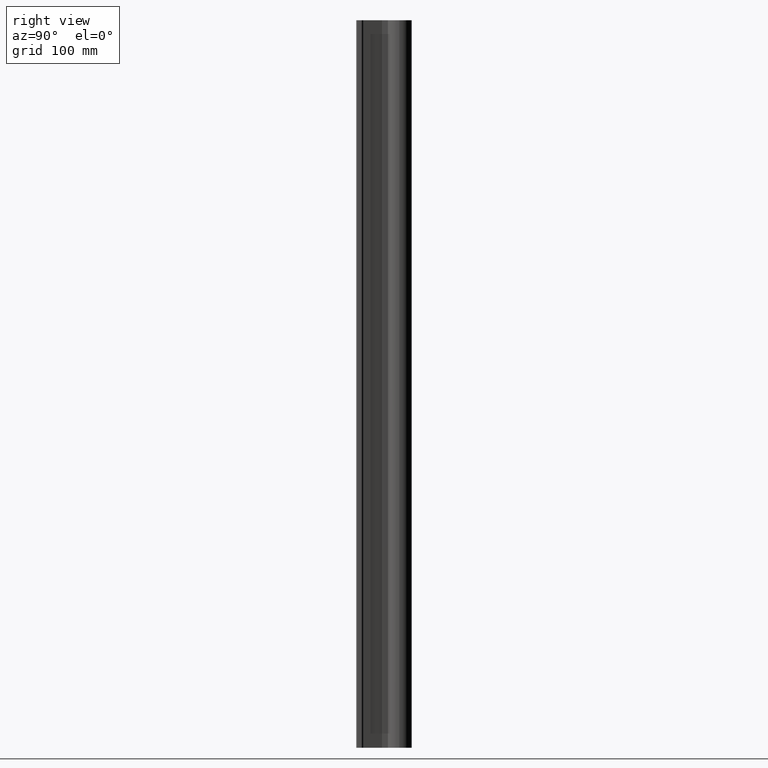
[diagram: clean part render]
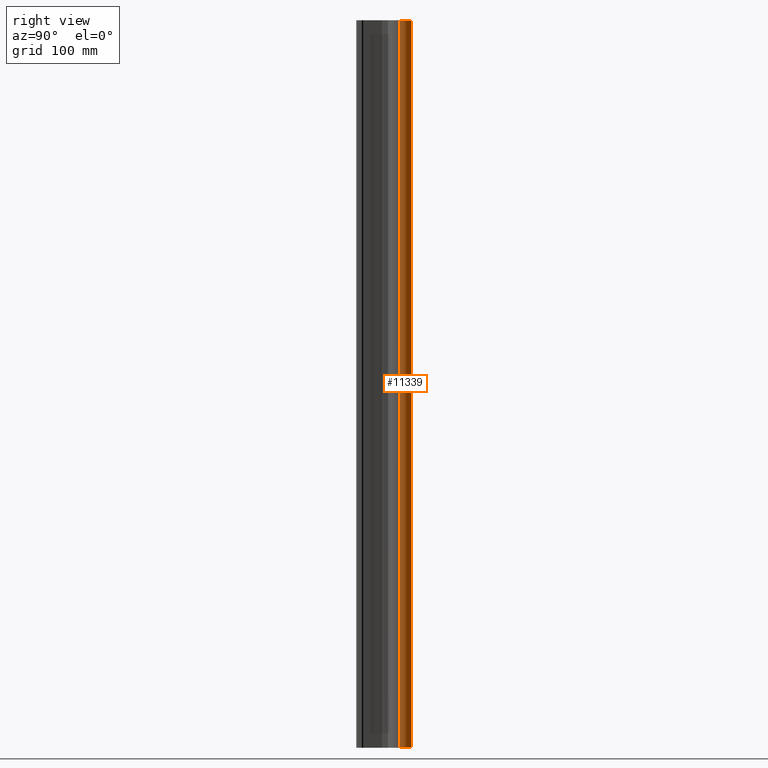
[diagram: same view with one face highlighted and labeled with its STEP entity id]
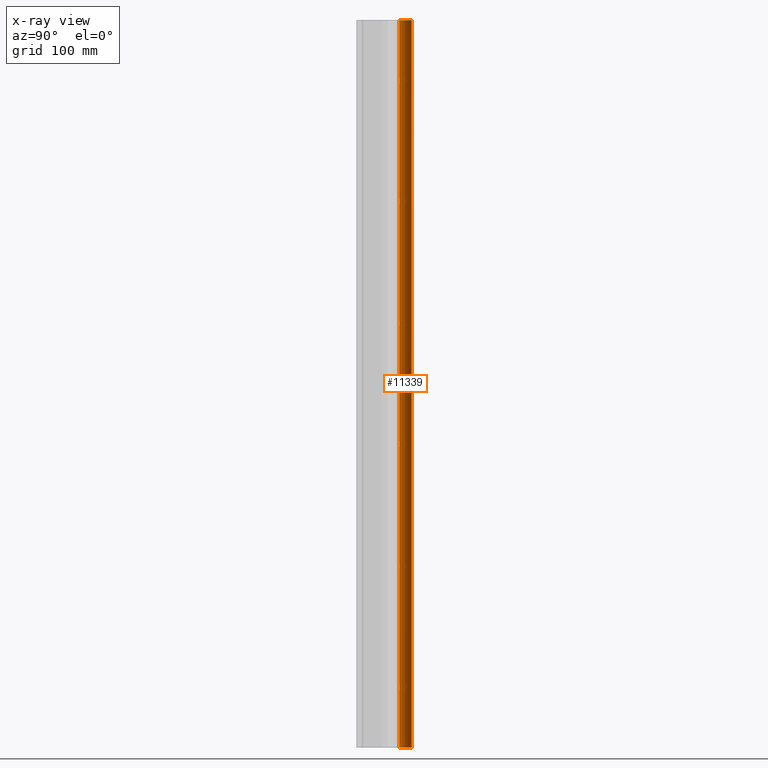
[diagram: x-ray of the same camera — body ghosted, the highlighted face saturated]
A machine part, right view. The second image highlights one B-rep face of the part: STEP entity #11339.
The next image is the same camera in x-ray: the body ghosted, the highlighted face saturated — about 0% of this face is hidden behind the body in this view.
In plain terms, the highlighted cylindrical surface (edge-blend (fillet) strip) has radius 15.875 mm, axis along (0, 0, 1).
Its self-contained STEP definition (entity closure, byte-faithful):
#49 = VECTOR ( 'NONE', #8067, 39.37007874015748143 ) ;
#64 = CARTESIAN_POINT ( 'NONE',  ( 0.6250000000000000000, 2.125000000000000000, -36.00000000000000000 ) ) ;
#432 = CARTESIAN_POINT ( 'NONE',  ( 0.000000000000000000, 2.125000000000000000, -36.00000000000000000 ) ) ;
#468 = ORIENTED_EDGE ( 'NONE', *, *, #695, .T. ) ;
#599 = VERTEX_POINT ( 'NONE', #4778 ) ;
#695 = EDGE_CURVE ( 'NONE', #11113, #4800, #9530, .T. ) ;
#1429 = CARTESIAN_POINT ( 'NONE',  ( 0.000000000000000000, 2.125000000000000000, 0.000000000000000000 ) ) ;
#1621 = DIRECTION ( 'NONE',  ( 0.000000000000000000, 0.000000000000000000, 1.000000000000000000 ) ) ;
#1743 = CARTESIAN_POINT ( 'NONE',  ( -0.6250000000000000000, 2.125000000000000000, -36.00000000000000000 ) ) ;
#1758 = LINE ( 'NONE', #2041, #2715 ) ;
#1867 = DIRECTION ( 'NONE',  ( 1.000000000000000000, 0.000000000000000000, 0.000000000000000000 ) ) ;
#2021 = EDGE_CURVE ( 'NONE', #4800, #599, #10223, .T. ) ;
#2041 = CARTESIAN_POINT ( 'NONE',  ( 0.6250000000000000000, 2.125000000000000000, -36.00000000000000000 ) ) ;
#2715 = VECTOR ( 'NONE', #9203, 39.37007874015748143 ) ;
#2735 = ORIENTED_EDGE ( 'NONE', *, *, #8865, .F. ) ;
#2977 = EDGE_LOOP ( 'NONE', ( #468, #6703, #2735, #6016 ) ) ;
#4350 = VERTEX_POINT ( 'NONE', #12856 ) ;
#4778 = CARTESIAN_POINT ( 'NONE',  ( -0.6250000000000000000, 2.125000000000000000, 0.000000000000000000 ) ) ;
#4800 = VERTEX_POINT ( 'NONE', #6757 ) ;
#4960 = EDGE_CURVE ( 'NONE', #11113, #4350, #1758, .T. ) ;
#6016 = ORIENTED_EDGE ( 'NONE', *, *, #4960, .F. ) ;
#6703 = ORIENTED_EDGE ( 'NONE', *, *, #2021, .T. ) ;
#6757 = CARTESIAN_POINT ( 'NONE',  ( -0.6250000000000000000, 2.125000000000000000, -36.00000000000000000 ) ) ;
#6844 = CIRCLE ( 'NONE', #13367, 0.6250000000000000000 ) ;
#6888 = DIRECTION ( 'NONE',  ( 1.000000000000000000, 0.000000000000000000, 0.000000000000000000 ) ) ;
#6954 = DIRECTION ( 'NONE',  ( 1.000000000000000000, 0.000000000000000000, 0.000000000000000000 ) ) ;
#7045 = FACE_OUTER_BOUND ( 'NONE', #2977, .T. ) ;
#7113 = CARTESIAN_POINT ( 'NONE',  ( 0.000000000000000000, 2.125000000000000000, -36.00000000000000000 ) ) ;
#8067 = DIRECTION ( 'NONE',  ( 0.000000000000000000, 0.000000000000000000, 1.000000000000000000 ) ) ;
#8865 = EDGE_CURVE ( 'NONE', #4350, #599, #6844, .T. ) ;
#9158 = DIRECTION ( 'NONE',  ( 0.000000000000000000, 0.000000000000000000, 1.000000000000000000 ) ) ;
#9203 = DIRECTION ( 'NONE',  ( 0.000000000000000000, 0.000000000000000000, 1.000000000000000000 ) ) ;
#9530 = CIRCLE ( 'NONE', #13145, 0.6250000000000000000 ) ;
#10065 = CYLINDRICAL_SURFACE ( 'NONE', #12310, 0.6250000000000000000 ) ;
#10223 = LINE ( 'NONE', #1743, #49 ) ;
#10962 = DIRECTION ( 'NONE',  ( 0.000000000000000000, 0.000000000000000000, 1.000000000000000000 ) ) ;
#11113 = VERTEX_POINT ( 'NONE', #64 ) ;
#11339 = ADVANCED_FACE ( 'NONE', ( #7045 ), #10065, .T. ) ;
#12310 = AXIS2_PLACEMENT_3D ( 'NONE', #7113, #9158, #1867 ) ;
#12856 = CARTESIAN_POINT ( 'NONE',  ( 0.6250000000000000000, 2.125000000000000000, 0.000000000000000000 ) ) ;
#13145 = AXIS2_PLACEMENT_3D ( 'NONE', #432, #1621, #6954 ) ;
#13367 = AXIS2_PLACEMENT_3D ( 'NONE', #1429, #10962, #6888 ) ;